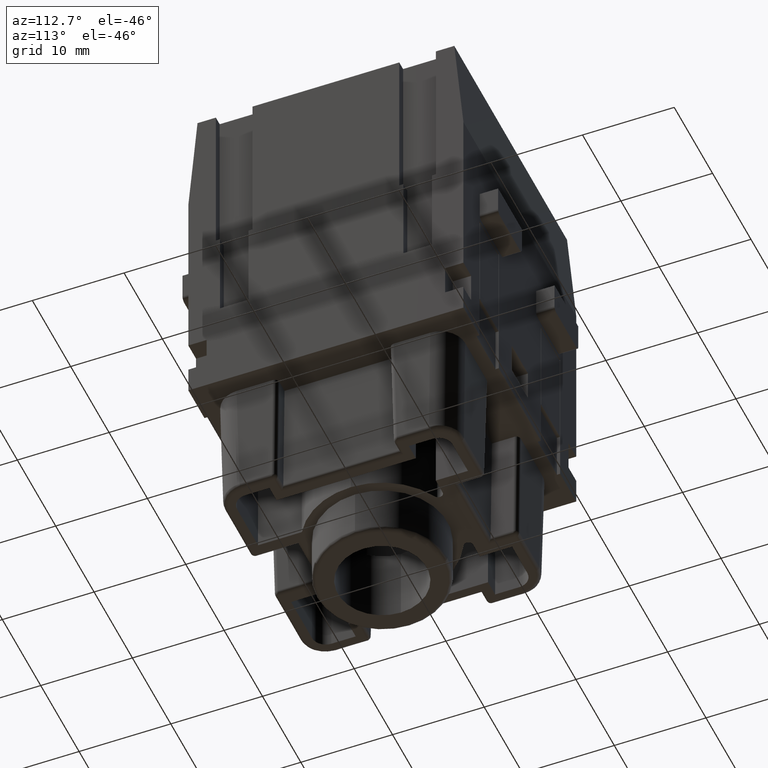
[diagram: clean part render]
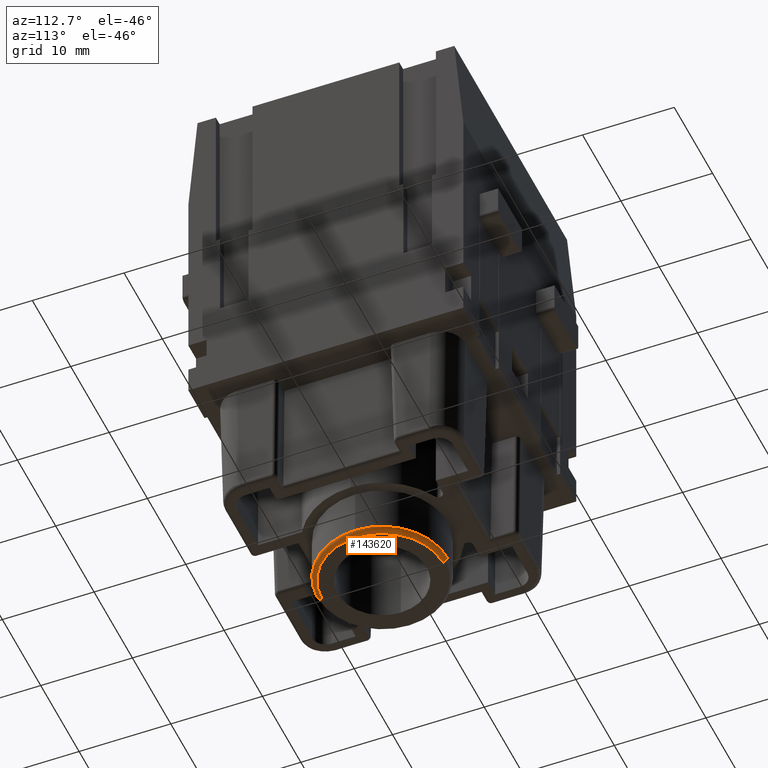
[diagram: same view with one face highlighted and labeled with its STEP entity id]
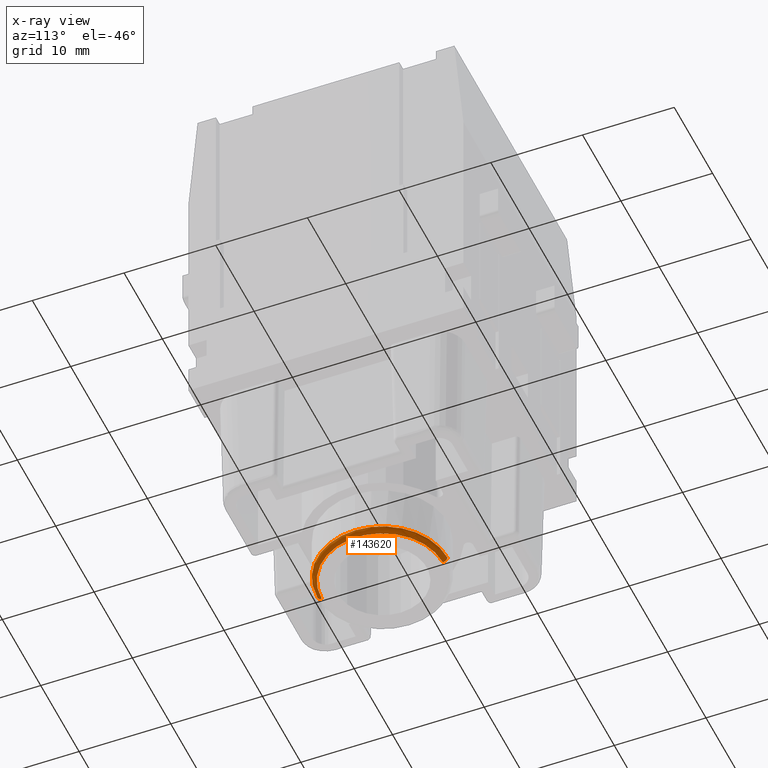
[diagram: x-ray of the same camera — body ghosted, the highlighted face saturated]
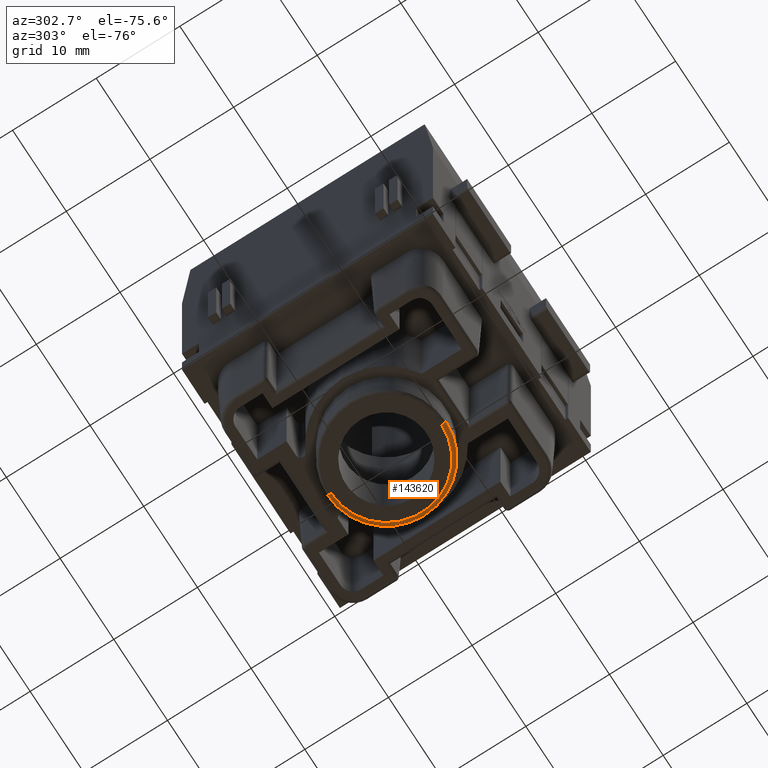
[diagram: same view with one face highlighted and labeled with its STEP entity id]
A machine part, auxiliary view. The second image highlights one B-rep face of the part: STEP entity #143620.
The next image is the same camera in x-ray: the body ghosted, the highlighted face saturated — about 0% of this face is hidden behind the body in this view.
A second angle (auxiliary view) of the same face is appended — the face is thin or edge-on in the first view.
In plain terms, the highlighted toroidal blend (fillet) surface has major radius 6.6 mm and minor (blend) radius 0.5 mm.
Its self-contained STEP definition (entity closure, byte-faithful):
#71630=CARTESIAN_POINT('',(41.347735,38.757183,-17.));
#71640=DIRECTION('',(-5.42358974422539E-31,-1.,2.40665319221843E-15));
#71650=DIRECTION('',(-1.3748441333373E-46,-2.40665319221843E-15,-1.));
#71660=AXIS2_PLACEMENT_3D('',#71630,#71640,#71650);
#71670=TOROIDAL_SURFACE('',#71660,6.6,0.5);
#71680=CARTESIAN_POINT('',(41.347735,38.757183,-23.6));
#71690=DIRECTION('',(1.,-5.42358974422539E-31,1.30526995712231E-45));
#71700=DIRECTION('',(5.42358974422539E-31,1.,1.11022302462516E-16));
#71710=AXIS2_PLACEMENT_3D('',#71680,#71690,#71700);
#71720=CIRCLE('',#71710,0.5);
#71730=CARTESIAN_POINT('',(41.347735,38.257183,-23.6));
#71740=VERTEX_POINT('',#71730);
#71750=CARTESIAN_POINT('',(41.347735,38.757183,-24.1));
#71760=VERTEX_POINT('',#71750);
#71770=EDGE_CURVE('',#71740,#71760,#71720,.T.);
#71790=CARTESIAN_POINT('',(41.347735,38.257183,-17.));
#71800=DIRECTION('',(-5.42358974422539E-31,-1.,2.40665319221843E-15));
#71810=DIRECTION('',(-1.3748441333373E-46,-2.40665319221843E-15,-1.));
#71820=AXIS2_PLACEMENT_3D('',#71790,#71800,#71810);
#71830=CIRCLE('',#71820,6.6);
#71880=CARTESIAN_POINT('',(41.347735,38.257183,-10.4));
#71890=VERTEX_POINT('',#71880);
#71920=CARTESIAN_POINT('',(41.347735,38.757183,-10.4));
#71930=DIRECTION('',(-1.,5.42358974422539E-31,-1.30526995712231E-45));
#71940=DIRECTION('',(5.42358974422539E-31,1.,-4.92432868689937E-15));
#71950=AXIS2_PLACEMENT_3D('',#71920,#71930,#71940);
#71960=CIRCLE('',#71950,0.5);
#71970=CARTESIAN_POINT('',(41.347735,38.757183,-9.89999999999996));
#71980=VERTEX_POINT('',#71970);
#71990=EDGE_CURVE('',#71890,#71980,#71960,.T.);
#72010=CARTESIAN_POINT('',(41.347735,38.757183,-17.));
#72020=DIRECTION('',(-5.42358974422539E-31,-1.,2.40665319221843E-15));
#72030=DIRECTION('',(-0.,-2.40665319221843E-15,-1.));
#72040=AXIS2_PLACEMENT_3D('',#72010,#72020,#72030);
#72050=CIRCLE('',#72040,7.1);
#86800=CARTESIAN_POINT('',(34.247735,38.757183,-17.));
#86810=VERTEX_POINT('',#86800);
#86840=EDGE_CURVE('',#86810,#71760,#72050,.T.);
#87020=EDGE_CURVE('',#71890,#71740,#71830,.T.);
#141900=EDGE_CURVE('',#71980,#86810,#72050,.T.);
#143550=ORIENTED_EDGE('',*,*,#86840,.T.);
#143560=ORIENTED_EDGE('',*,*,#141900,.T.);
#143570=ORIENTED_EDGE('',*,*,#71990,.T.);
#143580=ORIENTED_EDGE('',*,*,#87020,.F.);
#143590=ORIENTED_EDGE('',*,*,#71770,.F.);
#143600=EDGE_LOOP('',(#143590,#143580,#143570,#143560,#143550));
#143610=FACE_OUTER_BOUND('',#143600,.T.);
#143620=ADVANCED_FACE('',(#143610),#71670,.T.);